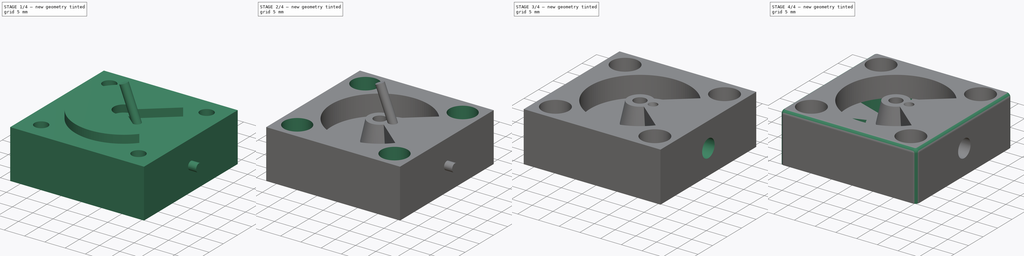
[diagram: build sequence overview — one tinted view per stage of 4, left to right]
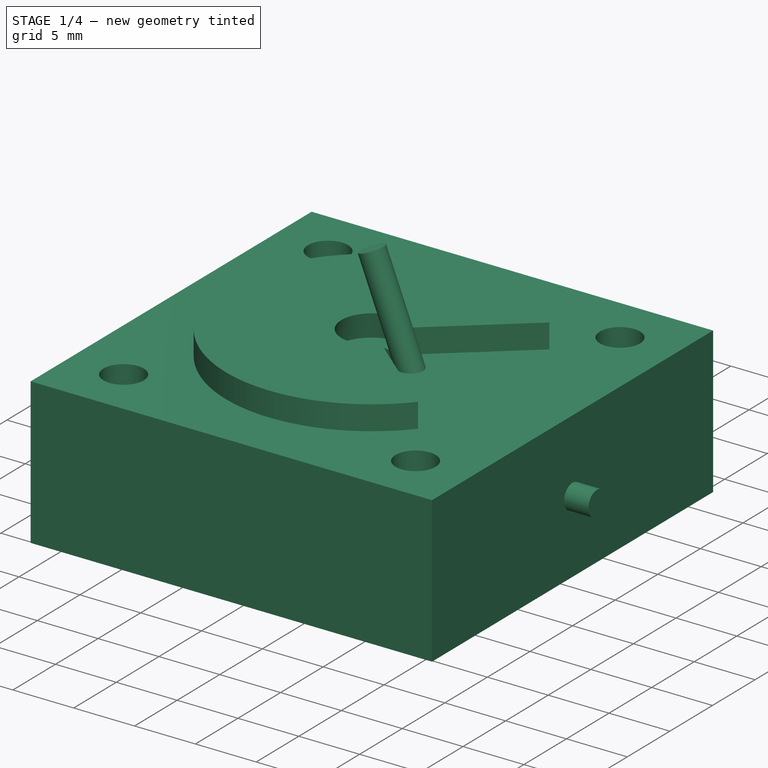
[diagram: stage 1 of 4 — iso view after this stage's code; geometry added in this stage tinted green]
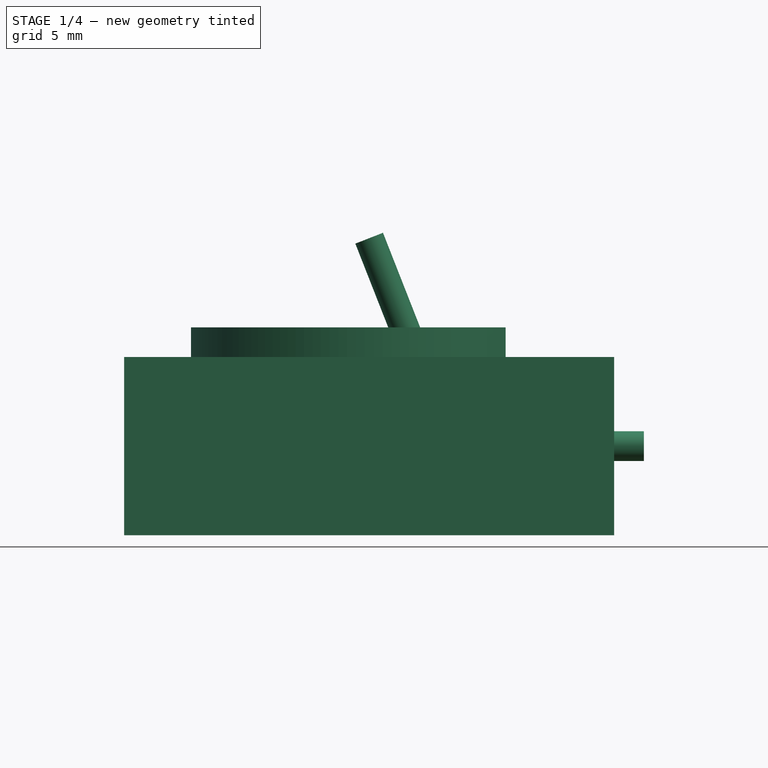
[diagram: stage 1 of 4 — front view after this stage's code; geometry added in this stage tinted green]
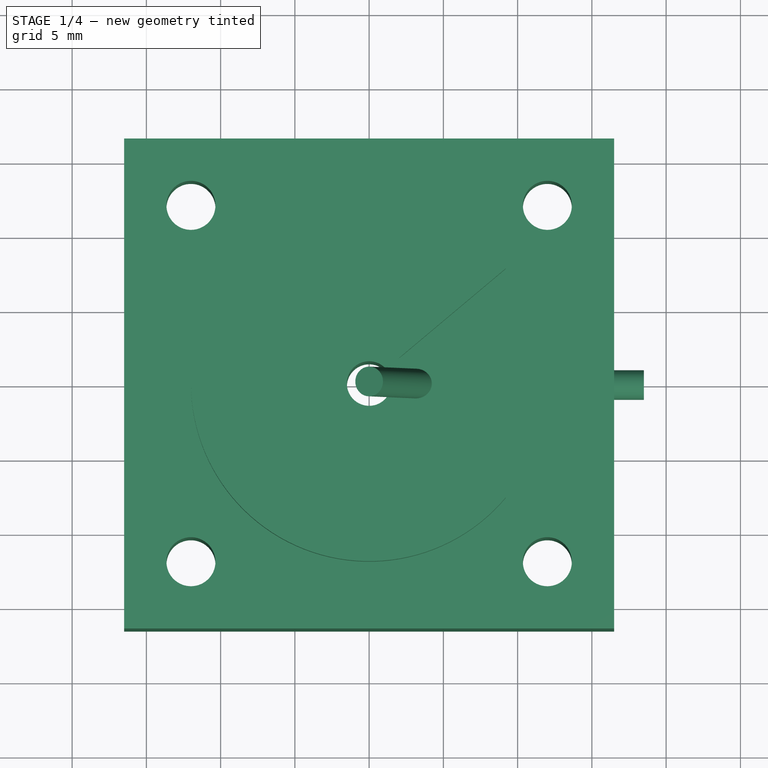
[diagram: stage 1 of 4 — top view after this stage's code; geometry added in this stage tinted green]
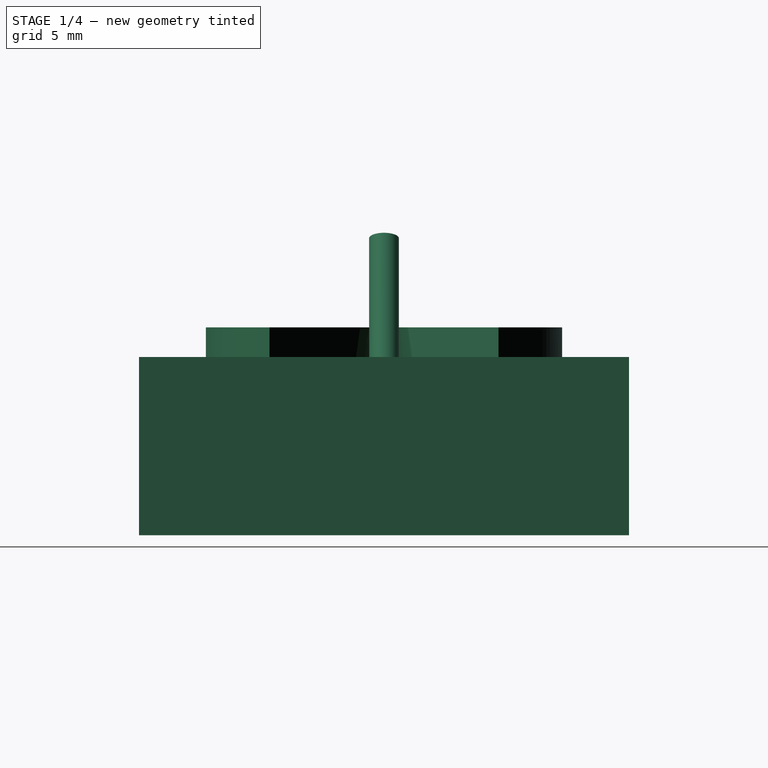
[diagram: stage 1 of 4 — right view after this stage's code; geometry added in this stage tinted green]
FCSTD DOCUMENT  (FreeCAD 0.20R29177 +426 (Git))
Label: Laser AirAssist 33mm
License: All rights reserved
LicenseURL: http://en.wikipedia.org/wiki/All_rights_reserved
objects: Sketcher::SketchObject×8, PartDesign::Pocket×4, PartDesign::Body×3, PartDesign::Boolean×2, PartDesign::Pad×1, PartDesign::Revolution×1, PartDesign::Plane×1, PartDesign::AdditivePipe×1, PartDesign::Hole×1, PartDesign::Fillet×1
note: 32 computed .brp shape members not serialized (recipe doc carries the construction recipe); baked Part::Feature solids carry a one-line shape summary decoded from their .brp

FEATURE [Sketcher::SketchObject] Sketch
  FullyConstrained = true
  MapMode = 5
  Support = -> [XY_Plane]
  sketch-geometry (9):
    g0: LineSegment StartX=-16.5 StartY=16.5 StartZ=0 EndX=16.5 EndY=16.5 EndZ=0
    g1: LineSegment StartX=16.5 StartY=16.5 StartZ=0 EndX=16.5 EndY=-16.5 EndZ=0
    g2: LineSegment StartX=16.5 StartY=-16.5 StartZ=0 EndX=-16.5 EndY=-16.5 EndZ=0
    g3: LineSegment StartX=-16.5 StartY=-16.5 StartZ=0 EndX=-16.5 EndY=16.5 EndZ=0
    g4: Circle CenterX=0 CenterY=0 CenterZ=0 NormalX=0 NormalY=0 NormalZ=1 AngleXU=0 Radius=1.5
    g5: Circle CenterX=-12 CenterY=12 CenterZ=0 NormalX=0 NormalY=0 NormalZ=1 AngleXU=0 Radius=1.65
    g6: Circle CenterX=12 CenterY=12 CenterZ=0 NormalX=0 NormalY=0 NormalZ=1 AngleXU=0 Radius=1.65
    g7: Circle CenterX=12 CenterY=-12 CenterZ=0 NormalX=0 NormalY=0 NormalZ=1 AngleXU=0 Radius=1.65
    g8: Circle CenterX=-12 CenterY=-12 CenterZ=0 NormalX=0 NormalY=0 NormalZ=1 AngleXU=0 Radius=1.65
  constraints (24):
    c: Coincident(g0,g1)
    c: Coincident(g1,g2)
    c: Coincident(g2,g3)
    c: Coincident(g3,g0)
    c: Horizontal(g0)
    c: Horizontal(g2)
    c: Vertical(g1)
    c: Vertical(g3)
    c: DistanceX(g0,g0) = 33
    c: DistanceY(g1,g1) = 33
    c: Symmetric(g2,g0,g-1)
    c: Coincident(g4,g-1)
    c: Diameter(g4) = 3
    c: Diameter(g6) = 3.3
    c: Equal(g6,g5)
    c: Equal(g5,g8)
    c: Equal(g8,g7)
    c: Horizontal(g6,g5)
    c: Horizontal(g8,g7)
    c: Vertical(g7,g6)
    c: Vertical(g5,g8)
    c: DistanceX(g5,g6) = 24
    c: DistanceY(g7,g6) = 24
    c: Symmetric(g8,g6,g4)
FEATURE [PartDesign::Pad] Pad
  Direction = (0,0,1)
  Length = 12
  Length2 = 10
  Profile = -> Sketch
  ReferenceAxis = -> Sketch [N_Axis]
  Type = 0
FEATURE [Sketcher::SketchObject] Sketch003
  FullyConstrained = true
  MapMode = 5
  Placement = pos=(0,0,0) rot=(1,0,0;1.5708rad)
  Support = -> [XZ_Plane001]
  sketch-geometry (4):
    g0: LineSegment StartX=-12 StartY=14 StartZ=0 EndX=-12 EndY=7 EndZ=0
    g1: LineSegment StartX=-12 StartY=7 StartZ=0 EndX=-4 EndY=7 EndZ=0
    g2: LineSegment StartX=-12 StartY=14 StartZ=0 EndX=-2.5 EndY=14 EndZ=0
    g3: LineSegment StartX=-2.5 StartY=14 StartZ=0 EndX=-4 EndY=7 EndZ=0
  constraints (12):
    c: Vertical(g0)
    c: Coincident(g1,g0)
    c: Horizontal(g1)
    c: Coincident(g2,g0)
    c: Horizontal(g2)
    c: Coincident(g3,g2)
    c: Coincident(g3,g1)
    c: DistanceX(g2,g2) = 9.5
    c: DistanceX(g2,g-1) = 2.5
    c: DistanceX(g1,g2) = 1.5
    c: DistanceY(g0,g0) = 7
    c: DistanceY(g-1,g1) = 7
FEATURE [PartDesign::Revolution] Revolution
  Angle = 280
  Axis = (0,-2e-16,1)
  Base = (0,0,0)
  Midplane = true
  Placement = pos=(0,0,0) rot=(1,0,0;1.5708rad)
  Profile = -> Sketch003
  ReferenceAxis = -> Sketch003 [V_Axis]
FEATURE [Sketcher::SketchObject] Sketch004  label="SweepPath"
  FullyConstrained = true
  MapMode = 5
  Placement = pos=(0,0,0) rot=(1,0,0;1.5708rad)
  Support = -> [XZ_Plane002]
  sketch-geometry (4):
    g0: LineSegment StartX=0 StartY=20 StartZ=0 EndX=4.50317 EndY=8.53739 EndZ=0
    g1: LineSegment StartX=8.22617 StartY=6 StartZ=0 EndX=18.5 EndY=6 EndZ=0
    g2: ArcOfCircle CenterX=8.22617 CenterY=10 CenterZ=0 NormalX=0 NormalY=0 NormalZ=1 AngleXU=0 Radius=4 StartAngle=3.51593 EndAngle=4.71239
    g3: GeomPoint X=5.5 Y=6 Z=0
  constraints (11):
    c: PointOnObject(g0,g-2)
    c: Horizontal(g1)
    c: DistanceY(g-1,g0) = 20
    c: DistanceY(g-1,g1) = 6
    c: DistanceX(g-1,g3) = 5.5
    c: DistanceX(g3,g1) = 13
    c: PointOnObject(g3,g0)
    c: PointOnObject(g3,g1)
    c: Tangent(g0,g2) = -1.5708
    c: Tangent(g1,g2) = -1.5708
    c: Radius(g2) = 4
FEATURE [PartDesign::Plane] DatumPlane
  Length = 60
  MapMode = 6
  Placement = pos=(18.5,-1.3e-15,6) rot=(0,1,0;1.5708rad)
  ResizeMode = 0
  Support = -> [Sketch004,YZ_Plane002]
  Width = 60
FEATURE [Sketcher::SketchObject] Sketch005  label="HoleDiameter"
  FullyConstrained = true
  MapMode = 5
  Placement = pos=(18.5,-1.3e-15,6) rot=(0,1,0;1.5708rad)
  Support = -> [DatumPlane]
  sketch-geometry (1):
    g0: Circle CenterX=0 CenterY=0 CenterZ=0 NormalX=0 NormalY=0 NormalZ=1 AngleXU=0 Radius=1
  constraints (2):
    c: Coincident(g0,g-1)
    c: Diameter(g0) = 2
FEATURE [PartDesign::AdditivePipe] AdditivePipe
  AuxilleryCurvelinear = true
  AuxillerySpineTangent = false
  Binormal = (0,0,0)
  Mode = 0
  Placement = pos=(18.5,-1.3e-15,6) rot=(0,1,0;1.5708rad)
  Profile = -> Sketch005
  Spine = -> Sketch004 [Edge3,Edge2,Edge1]
  SpineTangent = false
  Transformation = 0
  Transition = 0
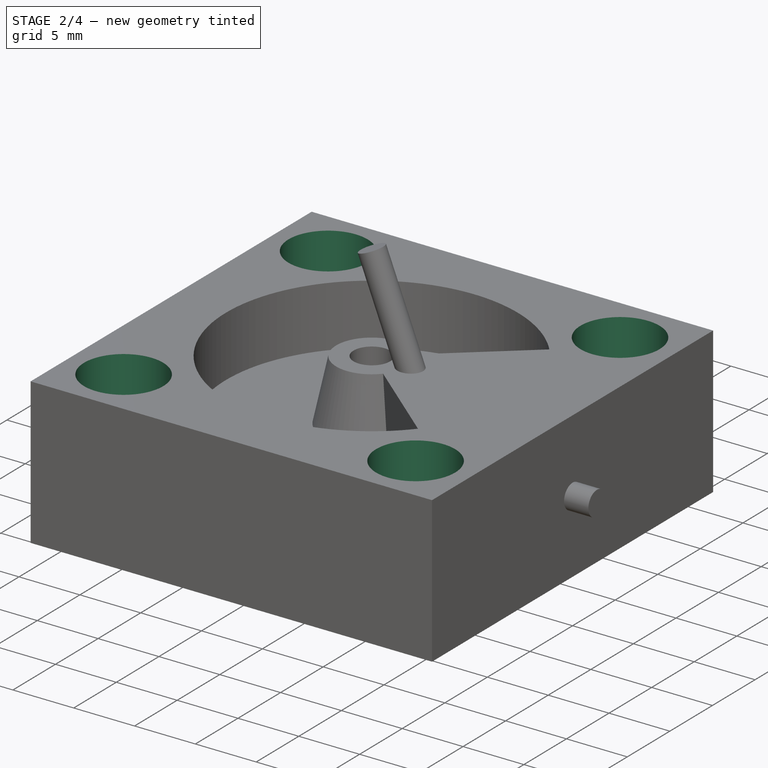
[diagram: stage 2 of 4 — iso view after this stage's code; geometry added in this stage tinted green]
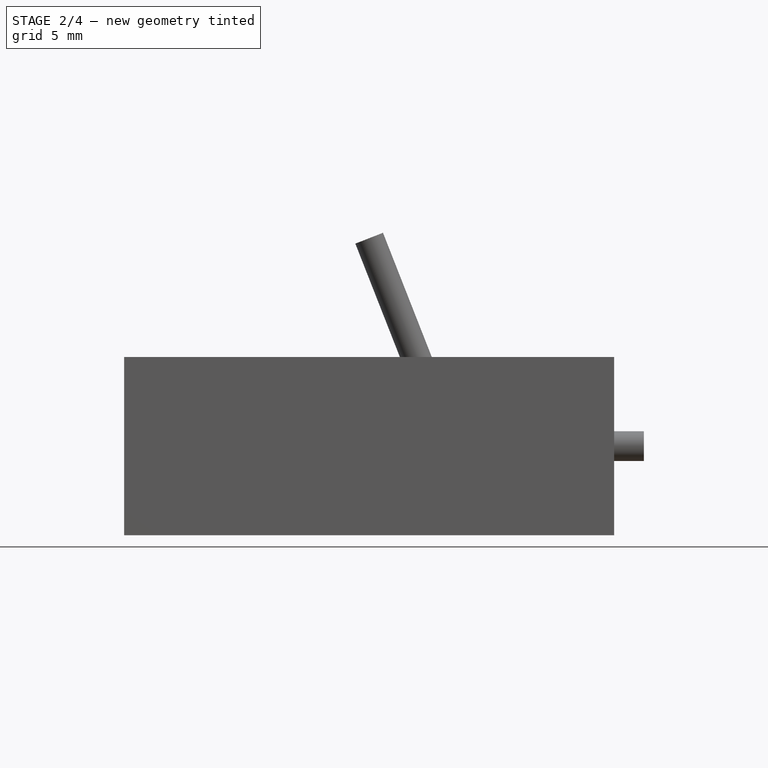
[diagram: stage 2 of 4 — front view after this stage's code; geometry added in this stage tinted green]
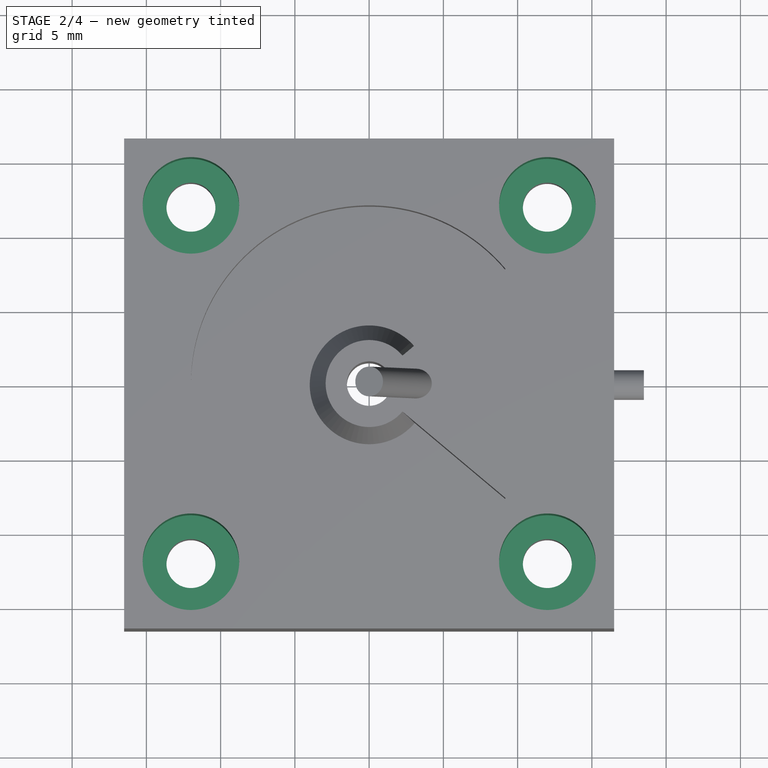
[diagram: stage 2 of 4 — top view after this stage's code; geometry added in this stage tinted green]
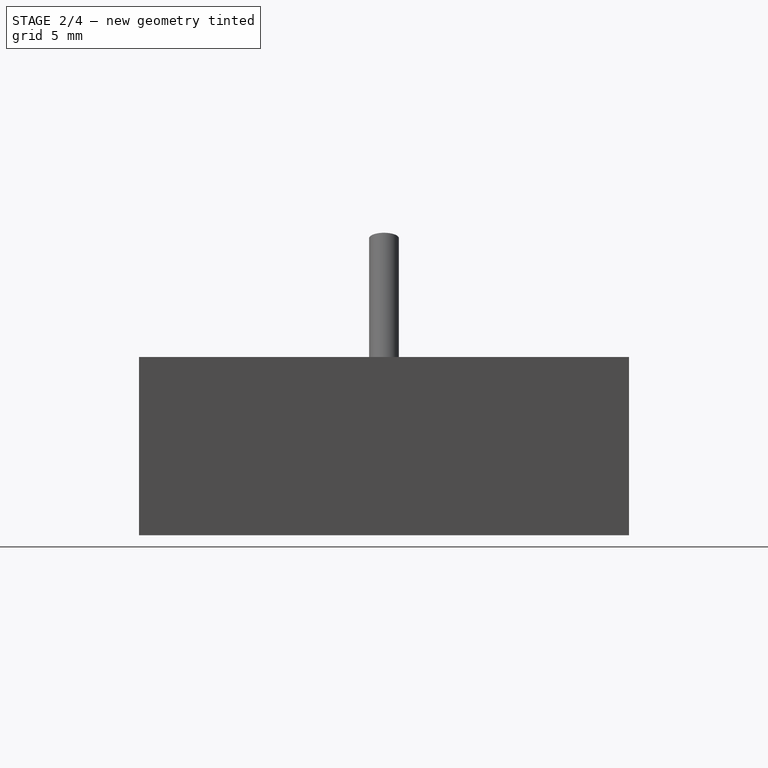
[diagram: stage 2 of 4 — right view after this stage's code; geometry added in this stage tinted green]
FEATURE [Sketcher::SketchObject] Sketch001  label="ScrewholePockets"
  ExternalGeometry = -> [Pad]
  FullyConstrained = true
  MapMode = 5
  Placement = pos=(0,0,12) rot=(0,0,1;0rad)
  Support = -> [Pad]
  sketch-geometry (4):
    g0: Circle CenterX=-12 CenterY=12 CenterZ=0 NormalX=0 NormalY=0 NormalZ=1 AngleXU=0 Radius=3.25
    g1: Circle CenterX=12 CenterY=12 CenterZ=0 NormalX=0 NormalY=0 NormalZ=1 AngleXU=0 Radius=3.25
    g2: Circle CenterX=12 CenterY=-12 CenterZ=0 NormalX=0 NormalY=0 NormalZ=1 AngleXU=0 Radius=3.25
    g3: Circle CenterX=-12 CenterY=-12 CenterZ=0 NormalX=0 NormalY=0 NormalZ=1 AngleXU=0 Radius=3.25
  constraints (8):
    c: Coincident(g0,g-3)
    c: Coincident(g1,g-4)
    c: Coincident(g2,g-5)
    c: Coincident(g3,g-6)
    c: Equal(g1,g0)
    c: Equal(g1,g2)
    c: Equal(g2,g3)
    c: Diameter(g1) = 6.5
FEATURE [PartDesign::Pocket] Pocket
  BaseFeature = -> Pad
  Direction = (0,0,-1)
  Length = 7
  Length2 = 5
  Profile = -> Sketch001
  ReferenceAxis = -> Sketch001 [N_Axis]
  Type = 0
FEATURE [Sketcher::SketchObject] Sketch002  label="LaserPocket"
  ExternalGeometry = -> [Pocket]
  FullyConstrained = true
  MapMode = 5
  Placement = pos=(0,0,0) rot=(1,0,0;3.14159rad)
  Support = -> [Pocket]
  sketch-geometry (1):
    g0: Circle CenterX=0 CenterY=0 CenterZ=0 NormalX=0 NormalY=0 NormalZ=1 AngleXU=0 Radius=8
  constraints (2):
    c: Coincident(g0,g-3)
    c: Diameter(g0) = 16
FEATURE [PartDesign::Pocket] Pocket001
  BaseFeature = -> Pocket
  Direction = (0,0,1)
  Length = 3.7
  Length2 = 5
  Profile = -> Sketch002
  ReferenceAxis = -> Sketch002 [N_Axis]
  Type = 0
FEATURE [PartDesign::Body] Body001  label="Cut"
  Group = -> [Sketch003,Revolution]
  Origin = -> Origin001
  Tip = -> Revolution
FEATURE [PartDesign::Boolean] Boolean
  BaseFeature = -> Pocket001
  Group = -> [Body001]
  Type = 1
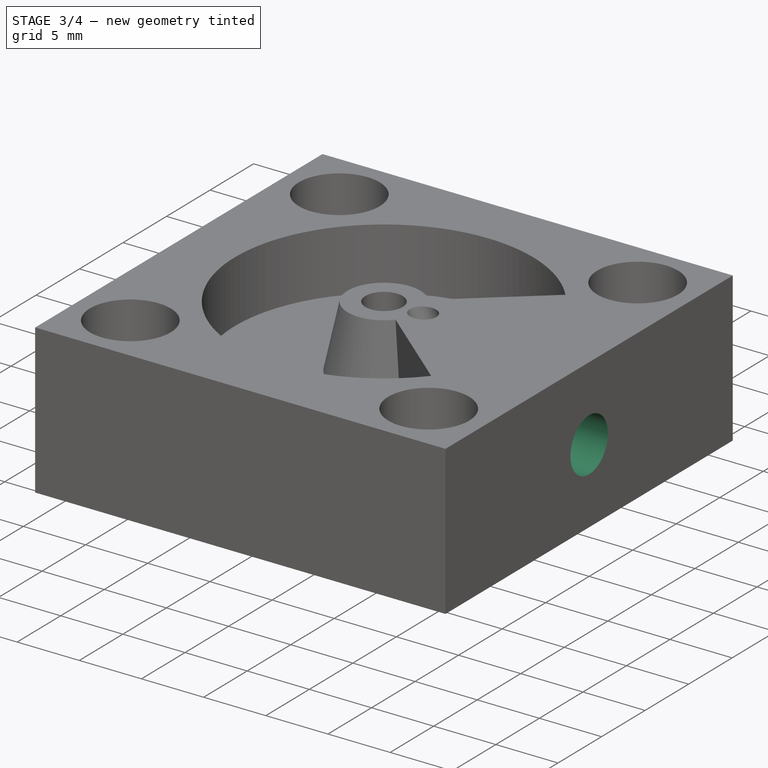
[diagram: stage 3 of 4 — iso view after this stage's code; geometry added in this stage tinted green]
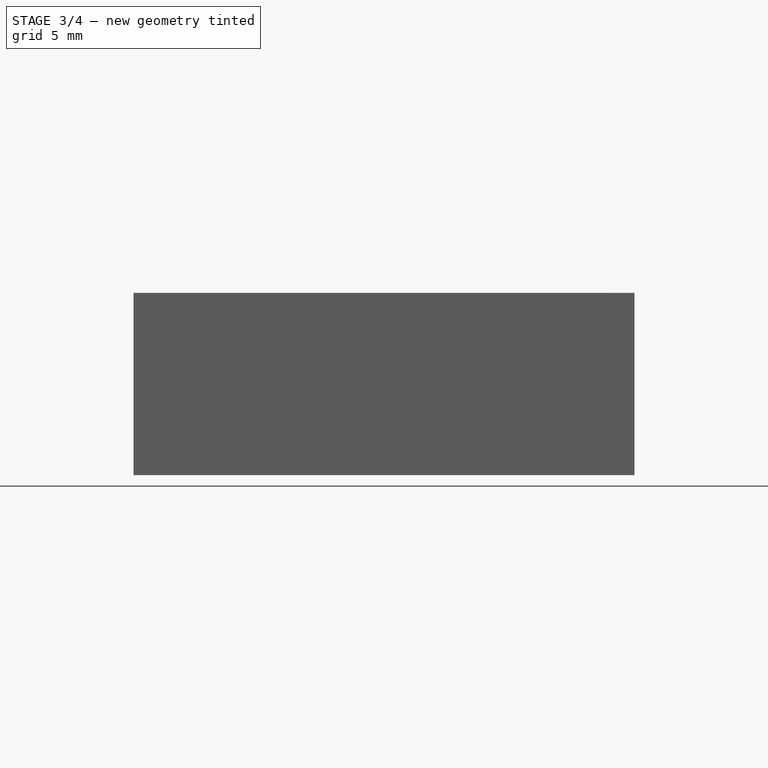
[diagram: stage 3 of 4 — front view after this stage's code; geometry added in this stage tinted green]
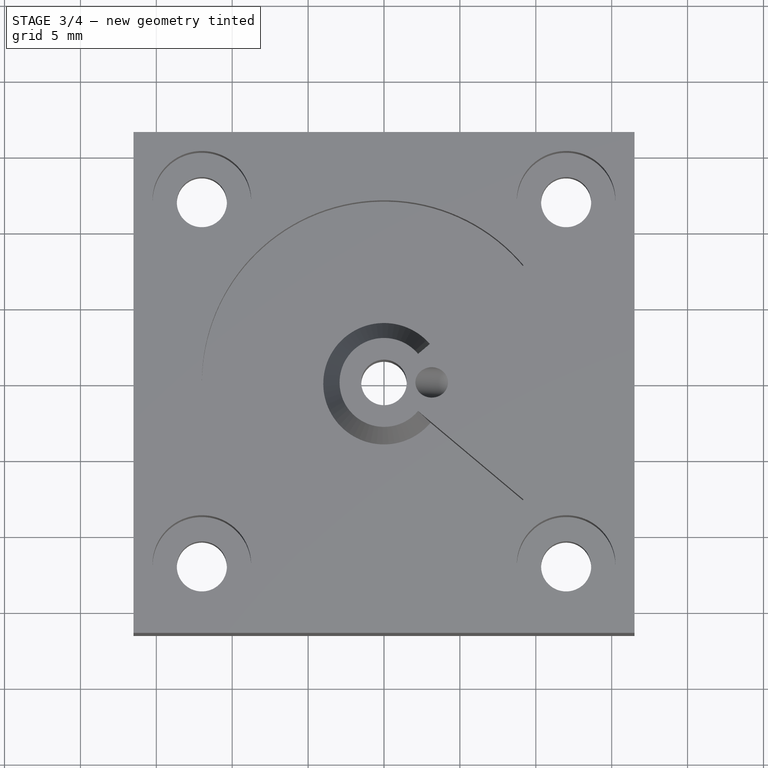
[diagram: stage 3 of 4 — top view after this stage's code; geometry added in this stage tinted green]
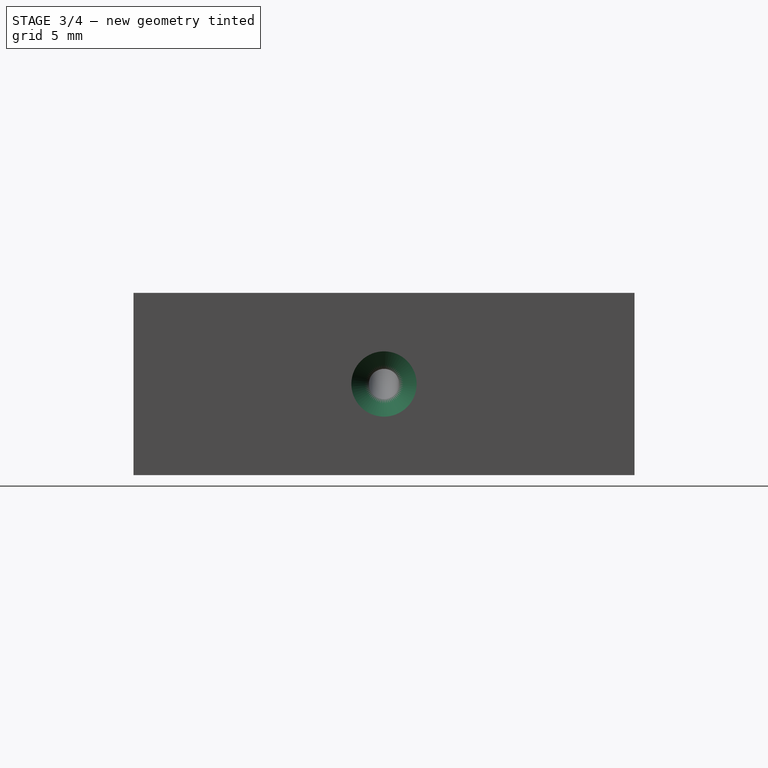
[diagram: stage 3 of 4 — right view after this stage's code; geometry added in this stage tinted green]
FEATURE [PartDesign::Body] Body002  label="AirPipe"
  Group = -> [Sketch004,DatumPlane,Sketch005,AdditivePipe]
  Origin = -> Origin002
  Tip = -> AdditivePipe
FEATURE [PartDesign::Boolean] Boolean001
  BaseFeature = -> Boolean
  Group = -> [Body002]
  Type = 1
FEATURE [PartDesign::Hole] Hole
  BaseFeature = -> Boolean001
  CustomThreadClearance = 0
  Depth = 7.5
  DepthType = 0
  Diameter = 4.3
  DrillForDepth = false
  DrillPoint = 1
  DrillPointAngle = 118
  HoleCutCountersinkAngle = 90
  HoleCutCustomValues = false
  HoleCutDepth = 0
  HoleCutDiameter = 6.1
  HoleCutType = 0
  ModelThread = false
  Profile = -> Boolean001 [Edge11]
  Tapered = false
  TaperedAngle = 90
  ThreadClass = 0
  ThreadDepth = 7.5
  ThreadDepthType = 0
  ThreadDirection = 0
  ThreadFit = 0
  ThreadSize = 0
  ThreadType = 0
  Threaded = false
  UseCustomThreadClearance = false
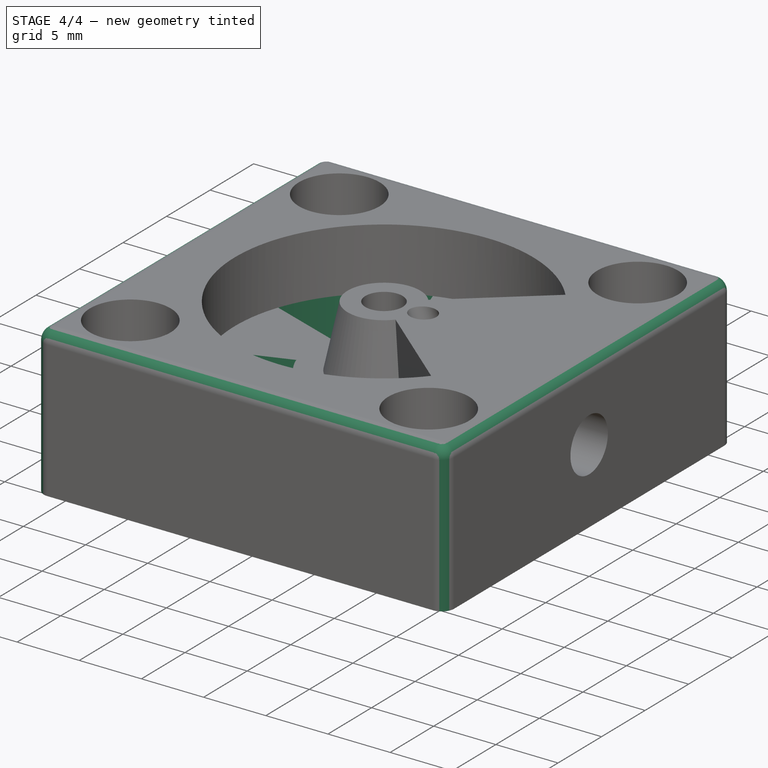
[diagram: stage 4 of 4 — iso view after this stage's code; geometry added in this stage tinted green]
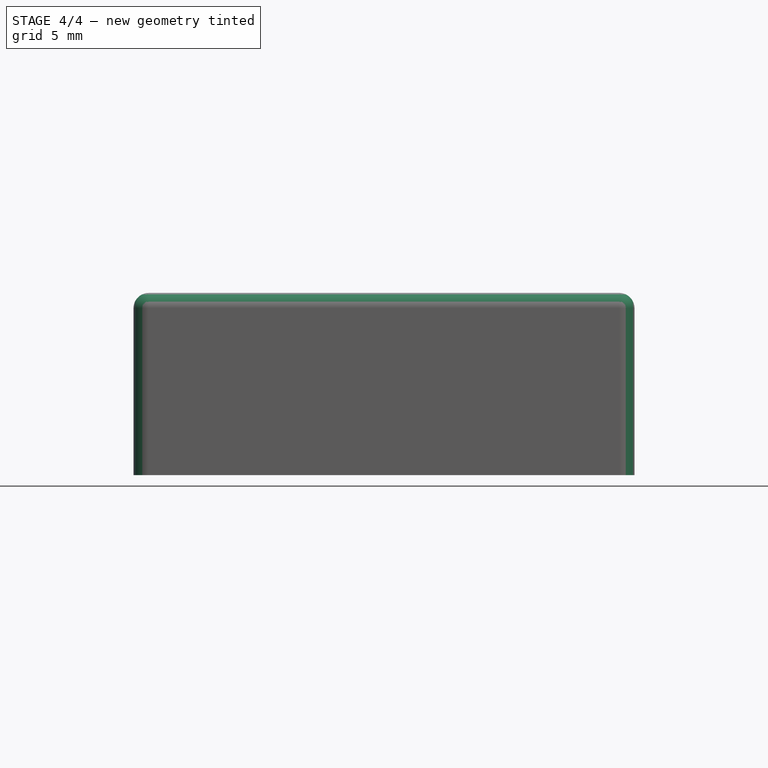
[diagram: stage 4 of 4 — front view after this stage's code; geometry added in this stage tinted green]
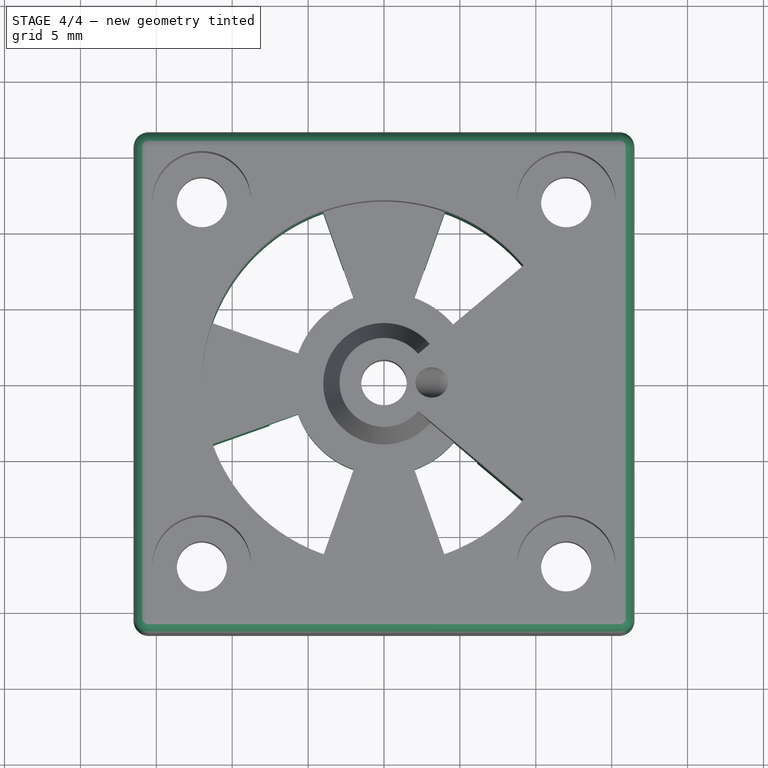
[diagram: stage 4 of 4 — top view after this stage's code; geometry added in this stage tinted green]
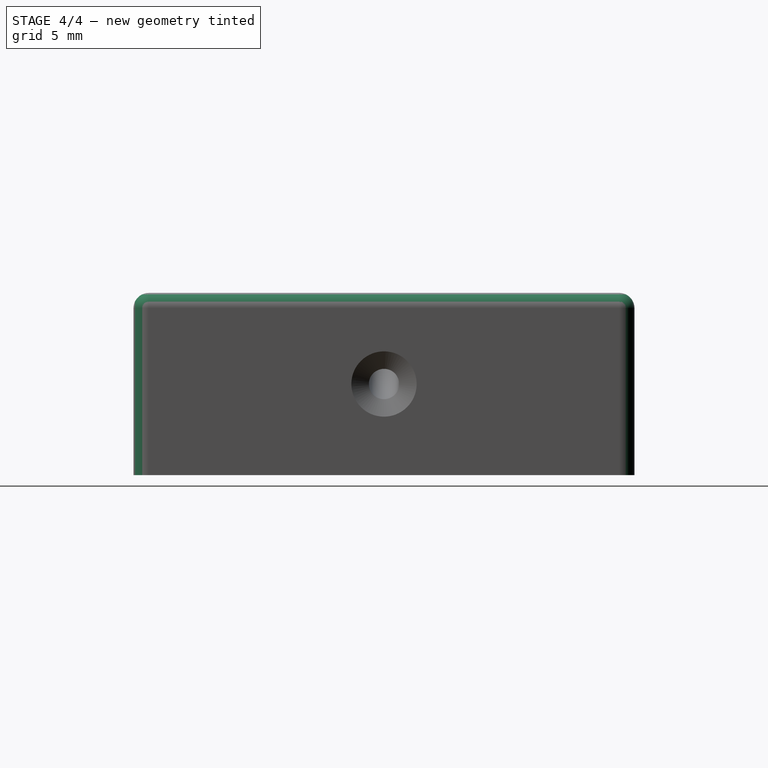
[diagram: stage 4 of 4 — right view after this stage's code; geometry added in this stage tinted green]
FEATURE [PartDesign::Fillet] Fillet
  Base = -> Hole [Edge18,Edge9,Edge10,Edge4,Edge7,Edge2,Edge5,Edge1]
  BaseFeature = -> Hole
  Radius = 1
  SupportTransform = false
  UseAllEdges = false
FEATURE [Sketcher::SketchObject] Sketch006
  ExternalGeometry = -> [Fillet]
  FullyConstrained = true
  MapMode = 5
  Placement = pos=(0,0,3.7) rot=(1,0,0;3.14159rad)
  Support = -> [Fillet]
  sketch-geometry (1):
    g0: Circle CenterX=0 CenterY=0 CenterZ=0 NormalX=0 NormalY=0 NormalZ=1 AngleXU=0 Radius=8
  constraints (2):
    c: Coincident(g0,g-4)
    c: Equal(g0,g-3)
FEATURE [PartDesign::Pocket] Pocket002
  BaseFeature = -> Fillet
  Direction = (0,0,1)
  Length = 2.5
  Length2 = 5
  Profile = -> Sketch006
  ReferenceAxis = -> Sketch006 [N_Axis]
  TaperAngle = -70
  Type = 0
FEATURE [Sketcher::SketchObject] Sketch007
  ExternalGeometry = -> [Pocket002]
  FullyConstrained = true
  MapMode = 5
  Placement = pos=(0,-1.6e-15,7) rot=(0,0,1;0rad)
  Support = -> [Pocket002]
  sketch-geometry (16):
    g0: ArcOfCircle CenterX=0 CenterY=0 CenterZ=0 NormalX=0 NormalY=0 NormalZ=1 AngleXU=0 Radius=12 StartAngle=1.91063 EndAngle=2.80176
    g1: ArcOfCircle CenterX=0 CenterY=0 CenterZ=0 NormalX=0 NormalY=0 NormalZ=1 AngleXU=0 Radius=12 StartAngle=3.48143 EndAngle=4.37255
    g2: ArcOfCircle CenterX=0 CenterY=0 CenterZ=0 NormalX=0 NormalY=0 NormalZ=1 AngleXU=0 Radius=6 StartAngle=1.91063 EndAngle=2.80176
    g3: ArcOfCircle CenterX=0 CenterY=0 CenterZ=0 NormalX=0 NormalY=0 NormalZ=1 AngleXU=0 Radius=6 StartAngle=3.48143 EndAngle=4.37255
    g4: LineSegment StartX=-2 StartY=5.65685 StartZ=0 EndX=-4 EndY=11.3137 EndZ=0
    g5: LineSegment StartX=-5.65685 StartY=2 StartZ=0 EndX=-11.3137 EndY=4 EndZ=0
    g6: LineSegment StartX=-5.65685 StartY=-2 StartZ=0 EndX=-11.3137 EndY=-4 EndZ=0
    g7: LineSegment StartX=-4 StartY=-11.3137 StartZ=0 EndX=-2 EndY=-5.65685 EndZ=0
    g8: ArcOfCircle CenterX=0 CenterY=0 CenterZ=0 NormalX=0 NormalY=0 NormalZ=1 AngleXU=0 Radius=12 StartAngle=0.698132 EndAngle=1.23096
    g9: ArcOfCircle CenterX=0 CenterY=0 CenterZ=0 NormalX=0 NormalY=0 NormalZ=1 AngleXU=0 Radius=6 StartAngle=0.698132 EndAngle=1.23096
    g10: ArcOfCircle CenterX=0 CenterY=0 CenterZ=0 NormalX=0 NormalY=0 NormalZ=1 AngleXU=0 Radius=12 StartAngle=5.05223 EndAngle=5.58505
    g11: ArcOfCircle CenterX=0 CenterY=0 CenterZ=0 NormalX=0 NormalY=0 NormalZ=1 AngleXU=0 Radius=6 StartAngle=5.05223 EndAngle=5.58505
    g12: LineSegment StartX=4 StartY=11.3137 StartZ=0 EndX=2 EndY=5.65685 EndZ=0
    g13: LineSegment StartX=4.59627 StartY=3.85673 StartZ=0 EndX=9.19253 EndY=7.71345 EndZ=0
    g14: LineSegment StartX=4.59627 StartY=-3.85673 StartZ=0 EndX=9.19253 EndY=-7.71345 EndZ=0
    g15: LineSegment StartX=4 StartY=-11.3137 StartZ=0 EndX=2 EndY=-5.65685 EndZ=0
  constraints (45):
    c: Coincident(g0,g-3)
    c: PointOnObject(g0,g-3)
    c: Coincident(g1,g0)
    c: Coincident(g2,g0)
    c: Coincident(g3,g0)
    c: Coincident(g4,g2)
    c: Coincident(g4,g0)
    c: Coincident(g5,g2)
    c: Coincident(g5,g0)
    c: Coincident(g6,g3)
    c: Coincident(g6,g1)
    c: Coincident(g7,g1)
    c: Coincident(g7,g3)
    c: Perpendicular(g0,g4)
    c: Perpendicular(g0,g5)
    c: Perpendicular(g1,g6)
    c: Perpendicular(g1,g7)
    c: Equal(g2,g3)
    c: Radius(g2) = 6
    c: Symmetric(g1,g0,g-1)
    c: Vertical(g0,g1)
    c: DistanceY(g1,g0) = 8
    c: DistanceX(g0,g0) = 4
    c: Coincident(g8,g0)
    c: Coincident(g8,g-3)
    c: Coincident(g9,g0)
    c: Coincident(g10,g0)
    c: Coincident(g10,g-3)
    c: Coincident(g11,g0)
    c: Coincident(g12,g8)
    c: Coincident(g12,g9)
    c: Coincident(g13,g9)
    c: Coincident(g13,g8)
    c: Coincident(g14,g11)
    c: Coincident(g14,g10)
    c: Coincident(g15,g10)
    c: Coincident(g15,g11)
    c: Perpendicular(g10,g14)
    c: Perpendicular(g10,g15)
    c: Perpendicular(g-3,g13)
    c: Perpendicular(g8,g12)
    c: Equal(g9,g2)
    c: Equal(g11,g3)
    c: DistanceX(g0,g8) = 4
    c: Vertical(g8,g10)
FEATURE [PartDesign::Pocket] Pocket003
  BaseFeature = -> Pocket002
  Direction = (0,2e-16,-1)
  Length = 5
  Length2 = 5
  Profile = -> Sketch007
  ReferenceAxis = -> Sketch007 [N_Axis]
  Type = 1
FEATURE [PartDesign::Body] Body
  Group = -> [Sketch,Pad,Sketch001,Pocket,Sketch002,Pocket001,Boolean,Boolean001,Hole,Fillet,Sketch006,Pocket002,Sketch007,Pocket003]
  Origin = -> Origin
  Tip = -> Pocket003
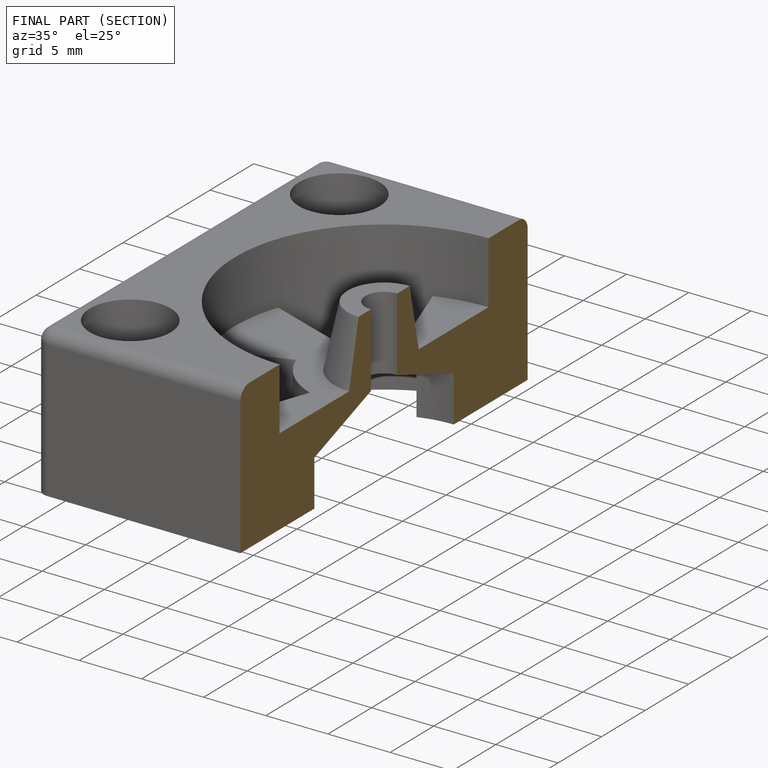
[diagram: finished part — half-section view (interior)]
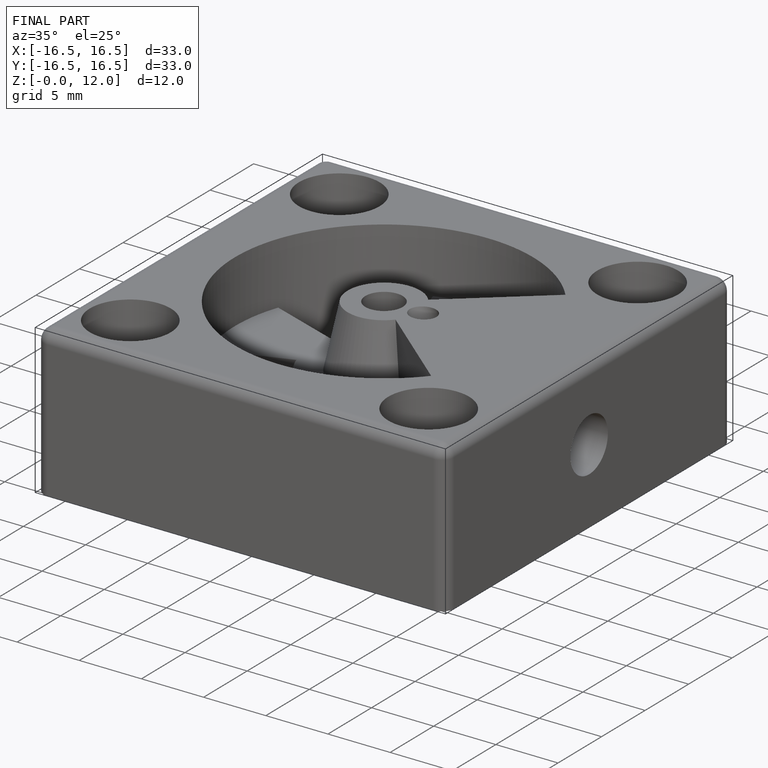
[diagram: finished part — iso view with bounding-box wireframe]
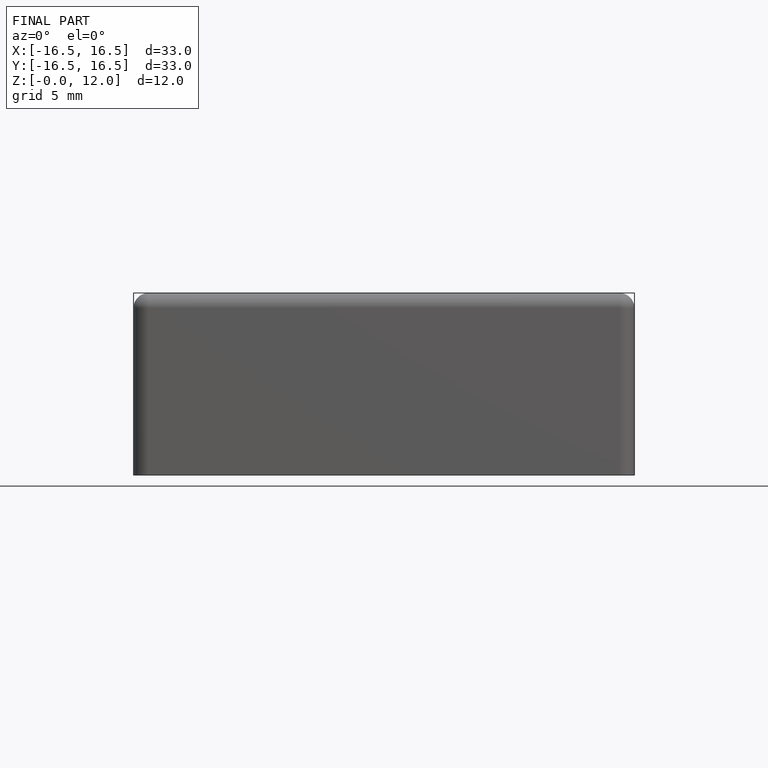
[diagram: finished part — front view with bounding-box wireframe]
